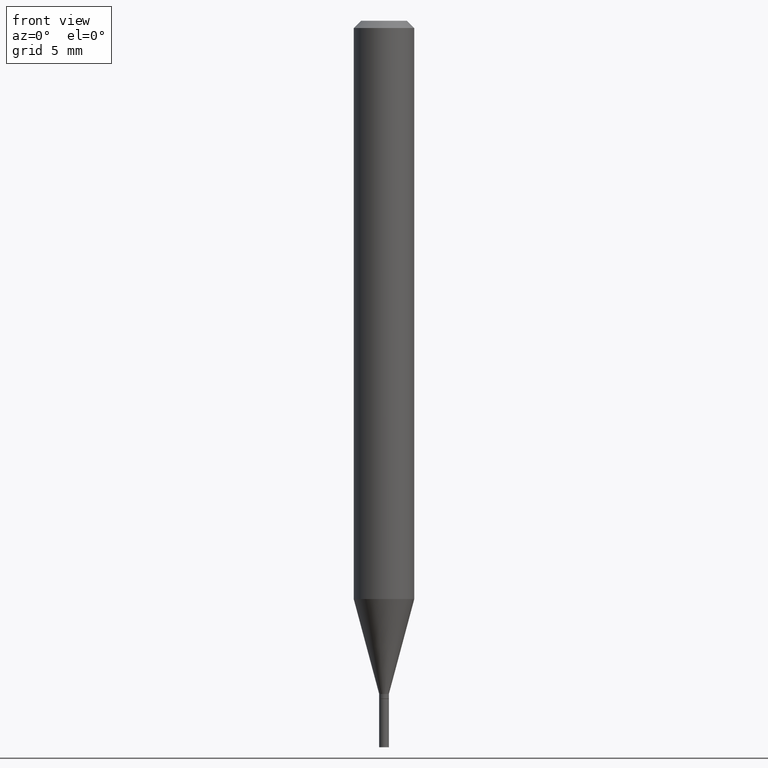
[diagram: clean part render]
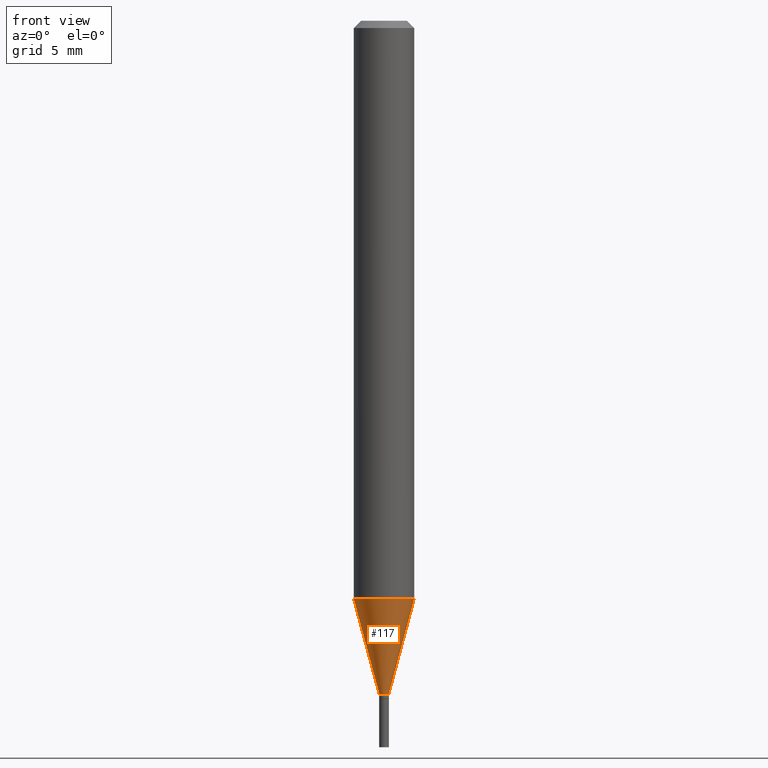
[diagram: same view with one face highlighted and labeled with its STEP entity id]
A machine part, front view. The second image highlights one B-rep face of the part: STEP entity #117.
In plain terms, the highlighted conical surface has half-angle 15 deg.
Its self-contained STEP definition (entity closure, byte-faithful):
#10 = LINE ( 'NONE', #443, #328 ) ;
#75 = CARTESIAN_POINT ( 'NONE',  ( 0.009999999999999918676, -4.922988687768835701E-15, -1.390000000000000124 ) ) ;
#106 = AXIS2_PLACEMENT_3D ( 'NONE', #108, #463, #316 ) ;
#108 = CARTESIAN_POINT ( 'NONE',  ( 3.399201640597340139E-29, -4.853159060991973192E-15, -1.390000000000000124 ) ) ;
#117 = ADVANCED_FACE ( 'NONE', ( #387 ), #171, .T. ) ;
#119 = DIRECTION ( 'NONE',  ( -2.445468806185136597E-29, 3.491481338843145583E-15, 1.000000000000000000 ) ) ;
#146 = CARTESIAN_POINT ( 'NONE',  ( -0.009999999999999918676, -4.253539693335104469E-15, -1.390000000000000124 ) ) ;
#163 = ORIENTED_EDGE ( 'NONE', *, *, #206, .T. ) ;
#167 = VERTEX_POINT ( 'NONE', #146 ) ;
#171 = CONICAL_SURFACE ( 'NONE', #302, 0.009999999999999918676, 0.2617993877991495744 ) ;
#181 = CARTESIAN_POINT ( 'NONE',  ( 0.06250000000000001388, -4.605498976459700114E-15, -1.194067332602633869 ) ) ;
#195 = CARTESIAN_POINT ( 'NONE',  ( 3.399201640597340139E-29, -4.853159060991973192E-15, -1.390000000000000124 ) ) ;
#206 = EDGE_CURVE ( 'NONE', #167, #359, #270, .T. ) ;
#219 = CARTESIAN_POINT ( 'NONE',  ( 2.920054414364433341E-29, -4.169063809104307655E-15, -1.194067332602633869 ) ) ;
#225 = VERTEX_POINT ( 'NONE', #181 ) ;
#233 = CARTESIAN_POINT ( 'NONE',  ( 0.009999999999999918676, -4.922988687768835701E-15, -1.390000000000000124 ) ) ;
#250 = EDGE_LOOP ( 'NONE', ( #444, #163, #297, #366 ) ) ;
#255 = CIRCLE ( 'NONE', #440, 0.06250000000000000000 ) ;
#258 = DIRECTION ( 'NONE',  ( 1.000000000000000000, -6.982962677686270655E-15, 0.000000000000000000 ) ) ;
#264 = LINE ( 'NONE', #233, #364 ) ;
#266 = EDGE_CURVE ( 'NONE', #167, #446, #10, .T. ) ;
#270 = CIRCLE ( 'NONE', #106, 0.009999999999999918676 ) ;
#273 = DIRECTION ( 'NONE',  ( 0.2588190451025209060, 1.565188264969625123E-15, 0.9659258262890682012 ) ) ;
#296 = DIRECTION ( 'NONE',  ( -2.445468806185136597E-29, 3.491481338843145583E-15, 1.000000000000000000 ) ) ;
#297 = ORIENTED_EDGE ( 'NONE', *, *, #433, .T. ) ;
#302 = AXIS2_PLACEMENT_3D ( 'NONE', #195, #119, #379 ) ;
#316 = DIRECTION ( 'NONE',  ( 1.000000000000000000, -6.982962677686292743E-15, 0.000000000000000000 ) ) ;
#320 = DIRECTION ( 'NONE',  ( -0.2588190451025209060, 5.211531920934547097E-15, 0.9659258262890682012 ) ) ;
#328 = VECTOR ( 'NONE', #320, 39.37007874015748143 ) ;
#349 = EDGE_CURVE ( 'NONE', #446, #225, #255, .T. ) ;
#359 = VERTEX_POINT ( 'NONE', #75 ) ;
#364 = VECTOR ( 'NONE', #273, 39.37007874015748143 ) ;
#366 = ORIENTED_EDGE ( 'NONE', *, *, #349, .F. ) ;
#379 = DIRECTION ( 'NONE',  ( 1.000000000000000000, -6.982962677686292743E-15, 0.000000000000000000 ) ) ;
#387 = FACE_OUTER_BOUND ( 'NONE', #250, .T. ) ;
#433 = EDGE_CURVE ( 'NONE', #359, #225, #264, .T. ) ;
#440 = AXIS2_PLACEMENT_3D ( 'NONE', #219, #296, #258 ) ;
#443 = CARTESIAN_POINT ( 'NONE',  ( -0.009999999999999918676, -4.782104787415963899E-15, -1.390000000000000124 ) ) ;
#444 = ORIENTED_EDGE ( 'NONE', *, *, #266, .F. ) ;
#446 = VERTEX_POINT ( 'NONE', #450 ) ;
#450 = CARTESIAN_POINT ( 'NONE',  ( -0.06250000000000001388, -3.724974599254245039E-15, -1.194067332602633869 ) ) ;
#463 = DIRECTION ( 'NONE',  ( -2.445468806185136597E-29, 3.491481338843145583E-15, 1.000000000000000000 ) ) ;